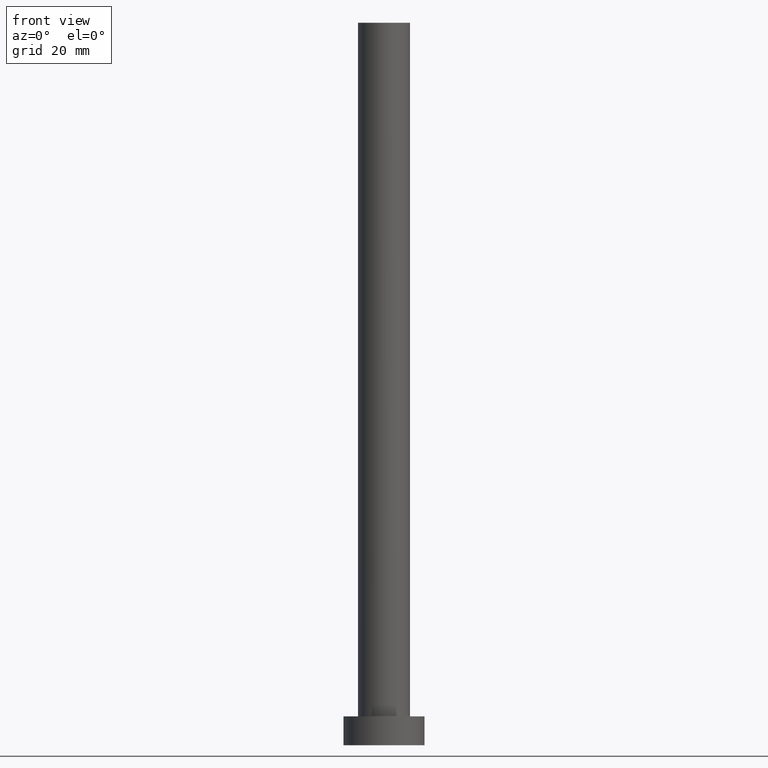
[diagram: clean part render]
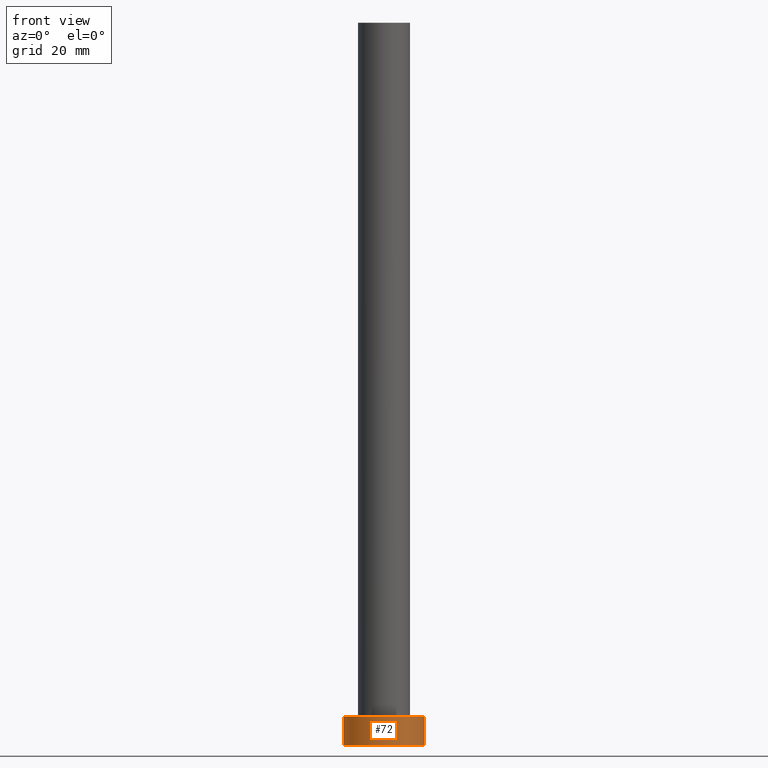
[diagram: same view with one face highlighted and labeled with its STEP entity id]
A machine part, front view. The second image highlights one B-rep face of the part: STEP entity #72.
In plain terms, the highlighted cylindrical surface (partial cylindrical patch) has radius 7 mm, axis along (-0, -0, -1).
Its self-contained STEP definition (entity closure, byte-faithful):
#5 = DIRECTION ( 'NONE',  ( -0.000000000000000000, -0.000000000000000000, -1.000000000000000000 ) ) ;
#6 = EDGE_CURVE ( 'NONE', #207, #101, #126, .T. ) ;
#8 = AXIS2_PLACEMENT_3D ( 'NONE', #167, #253, #170 ) ;
#11 = AXIS2_PLACEMENT_3D ( 'NONE', #107, #135, #28 ) ;
#14 = FACE_OUTER_BOUND ( 'NONE', #29, .T. ) ;
#27 = VERTEX_POINT ( 'NONE', #212 ) ;
#28 = DIRECTION ( 'NONE',  ( 1.000000000000000000, 0.000000000000000000, 0.000000000000000000 ) ) ;
#29 = EDGE_LOOP ( 'NONE', ( #145, #86, #103, #99 ) ) ;
#35 = AXIS2_PLACEMENT_3D ( 'NONE', #41, #238, #116 ) ;
#41 = CARTESIAN_POINT ( 'NONE',  ( 0.000000000000000000, 0.000000000000000000, 5.000000000000000000 ) ) ;
#48 = VERTEX_POINT ( 'NONE', #217 ) ;
#59 = CARTESIAN_POINT ( 'NONE',  ( 7.000000000000000000, 8.572527594031473190E-16, 0.000000000000000000 ) ) ;
#72 = ADVANCED_FACE ( 'NONE', ( #14 ), #252, .T. ) ;
#76 = LINE ( 'NONE', #133, #165 ) ;
#86 = ORIENTED_EDGE ( 'NONE', *, *, #235, .F. ) ;
#92 = CARTESIAN_POINT ( 'NONE',  ( -7.000000000000000000, 0.000000000000000000, 5.000000000000000000 ) ) ;
#99 = ORIENTED_EDGE ( 'NONE', *, *, #6, .T. ) ;
#101 = VERTEX_POINT ( 'NONE', #59 ) ;
#103 = ORIENTED_EDGE ( 'NONE', *, *, #169, .T. ) ;
#107 = CARTESIAN_POINT ( 'NONE',  ( 0.000000000000000000, 0.000000000000000000, 5.000000000000000000 ) ) ;
#114 = CIRCLE ( 'NONE', #11, 7.000000000000000000 ) ;
#116 = DIRECTION ( 'NONE',  ( -1.000000000000000000, 0.000000000000000000, 0.000000000000000000 ) ) ;
#126 = CIRCLE ( 'NONE', #8, 7.000000000000000000 ) ;
#133 = CARTESIAN_POINT ( 'NONE',  ( 7.000000000000000000, 8.572527594031473190E-16, 5.000000000000000000 ) ) ;
#135 = DIRECTION ( 'NONE',  ( 0.000000000000000000, 0.000000000000000000, 1.000000000000000000 ) ) ;
#145 = ORIENTED_EDGE ( 'NONE', *, *, #163, .F. ) ;
#158 = DIRECTION ( 'NONE',  ( -0.000000000000000000, -0.000000000000000000, -1.000000000000000000 ) ) ;
#163 = EDGE_CURVE ( 'NONE', #48, #101, #76, .T. ) ;
#165 = VECTOR ( 'NONE', #158, 1000.000000000000000 ) ;
#167 = CARTESIAN_POINT ( 'NONE',  ( 0.000000000000000000, 0.000000000000000000, 0.000000000000000000 ) ) ;
#169 = EDGE_CURVE ( 'NONE', #27, #207, #255, .T. ) ;
#170 = DIRECTION ( 'NONE',  ( 1.000000000000000000, 0.000000000000000000, 0.000000000000000000 ) ) ;
#207 = VERTEX_POINT ( 'NONE', #236 ) ;
#212 = CARTESIAN_POINT ( 'NONE',  ( -7.000000000000000000, 0.000000000000000000, 5.000000000000000000 ) ) ;
#217 = CARTESIAN_POINT ( 'NONE',  ( 7.000000000000000000, 8.572527594031473190E-16, 5.000000000000000000 ) ) ;
#225 = VECTOR ( 'NONE', #5, 1000.000000000000000 ) ;
#235 = EDGE_CURVE ( 'NONE', #27, #48, #114, .T. ) ;
#236 = CARTESIAN_POINT ( 'NONE',  ( -7.000000000000000000, 0.000000000000000000, 0.000000000000000000 ) ) ;
#238 = DIRECTION ( 'NONE',  ( -0.000000000000000000, -0.000000000000000000, -1.000000000000000000 ) ) ;
#252 = CYLINDRICAL_SURFACE ( 'NONE', #35, 7.000000000000000000 ) ;
#253 = DIRECTION ( 'NONE',  ( 0.000000000000000000, 0.000000000000000000, 1.000000000000000000 ) ) ;
#255 = LINE ( 'NONE', #92, #225 ) ;